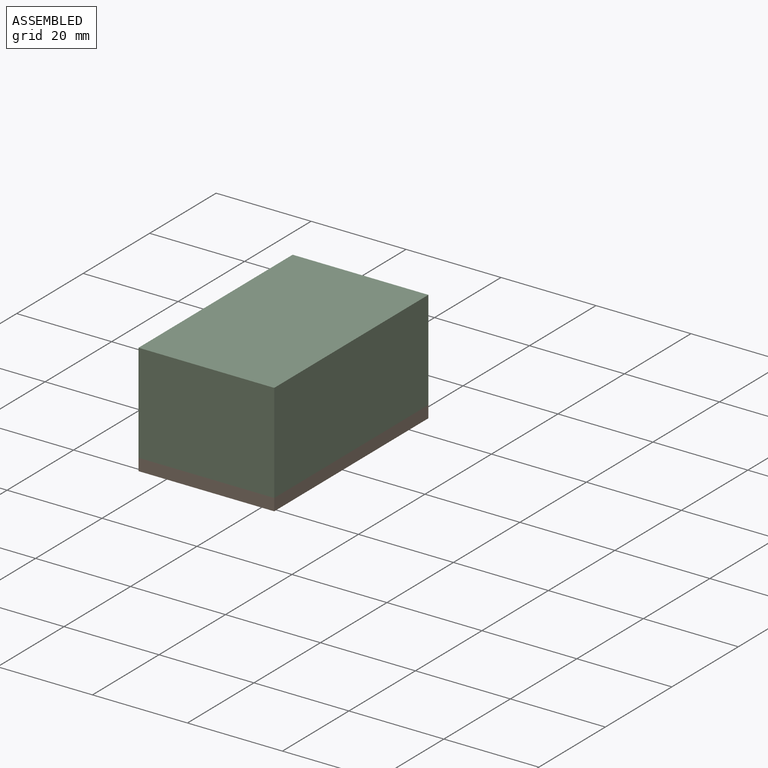
[diagram: assembled view]
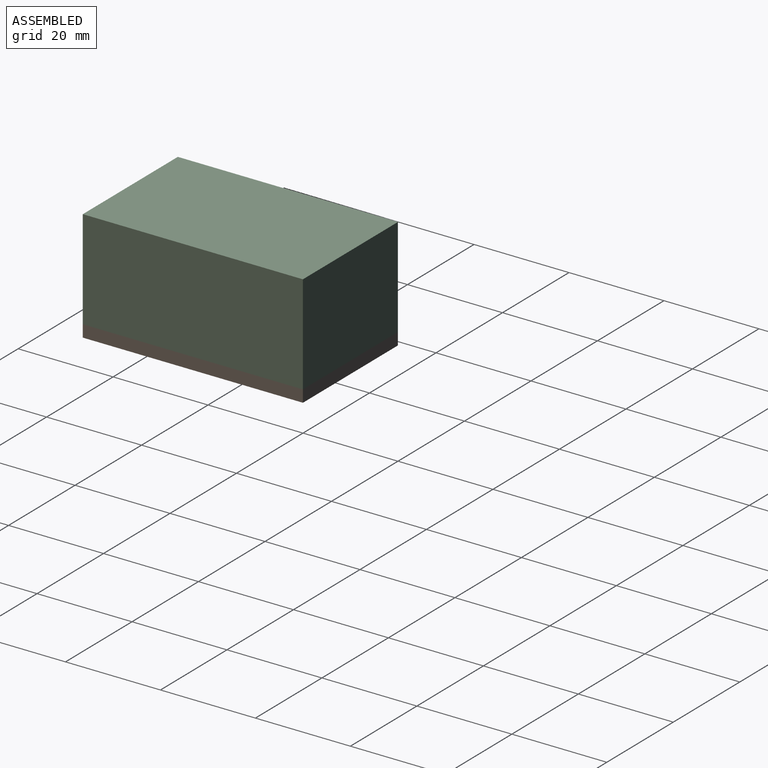
[diagram: assembled view, second angle]
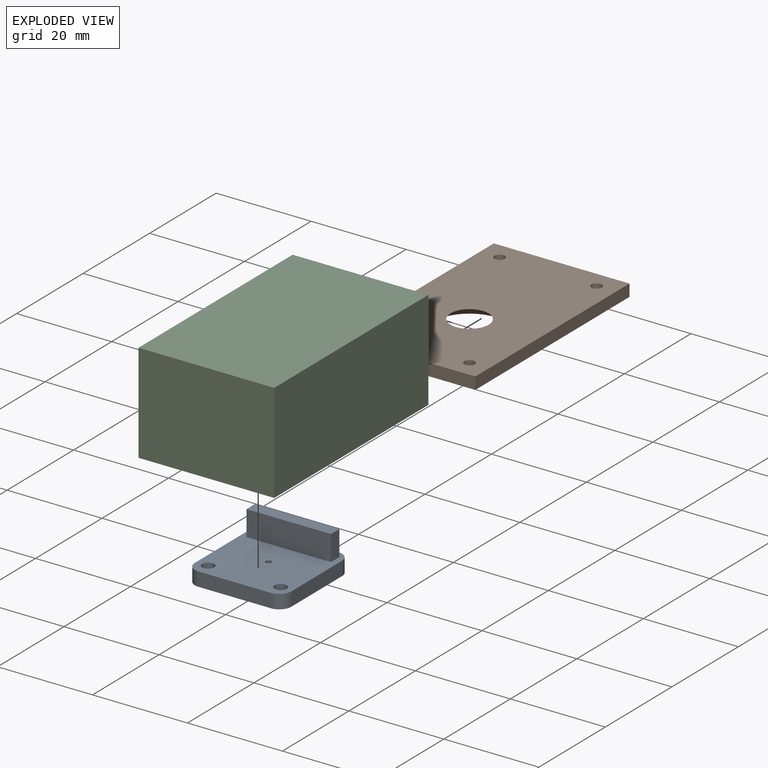
[diagram: exploded view]
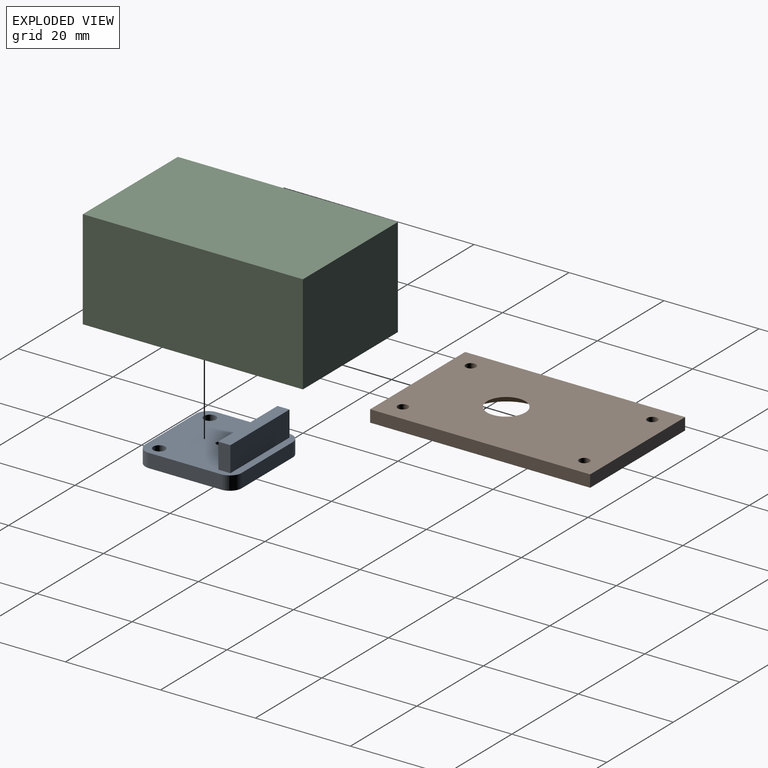
[diagram: exploded view, second angle]
ASSEMBLY  parts=3 mates=4
PART A: 18 faces, bbox 20.3x20.3x8.3 mm
  f0: plane 20.32x20.32mm, normal (0,0,1), area 350.8mm2, adj f1,f2,f3,f4,f6,f7,f8,f9
  f1: plane 15.24x2.92mm, normal (-1,0,0), area 44.5mm2, adj f0,f5,f8,f11
  f2: plane 15.24x2.92mm, normal (0,-1,0), area 44.5mm2, adj f0,f5,f8,f9
  f3: plane 15.24x2.92mm, normal (1,0,0), area 44.5mm2, adj f0,f5,f9,f10
  f4: plane 15.24x2.92mm, normal (0,1,0), area 44.5mm2, adj f0,f5,f10,f11
  f5: plane 20.32x20.32mm, normal (0,0,-1), area 396mm2, adj f1,f2,f3,f4,f6,f7,f8,f9
  f6: cylinder r=1.27mm len=2.92mm, axis (0,0,1), area 23.3mm2, adj f0,f5
  f7: cylinder r=1.27mm len=2.92mm, axis (0,0,1), area 23.3mm2, adj f0,f5
  f8: cylinder r=2.54mm len=2.92mm, axis (0,0,-1), area 11.7mm2, adj f0,f1,f2,f5
  f9: cylinder r=2.54mm len=2.92mm, axis (0,0,1), area 11.7mm2, adj f0,f2,f3,f5
  f10: cylinder r=2.54mm len=2.92mm, axis (0,0,-1), area 11.7mm2, adj f0,f3,f4,f5
  f11: cylinder r=2.54mm len=2.92mm, axis (0,0,1), area 11.7mm2, adj f0,f1,f4,f5
  f12: plane 17.78x5.33mm, normal (0,1,0), area 94.8mm2, adj f0,f13,f15,f16
  f13: plane 5.33x2.54mm, normal (-1,0,0), area 13.5mm2, adj f0,f12,f14,f16
  f14: plane 17.78x5.33mm, normal (0,-1,0), area 94.8mm2, adj f0,f13,f15,f16
  f15: plane 5.33x2.54mm, normal (1,0,0), area 13.5mm2, adj f0,f12,f14,f16
  f16: plane 17.78x2.54mm, normal (0,0,1), area 45.2mm2, adj f12,f13,f14,f15
  f17: cylinder r=0.64mm len=2.92mm, axis (0,0,1), area 11.7mm2, adj f0,f5
PART B: 11 faces, bbox 46.4x28.6x2.5 mm
  f0: plane 28.58x2.54mm, normal (-1,0,0), area 72.6mm2, adj f1,f3,f4,f5
  f1: plane 46.36x2.54mm, normal (0,-1,0), area 117.7mm2, adj f0,f2,f4,f5
  f2: plane 28.58x2.54mm, normal (1,0,0), area 72.6mm2, adj f1,f3,f4,f5
  f3: plane 46.36x2.54mm, normal (0,1,0), area 117.7mm2, adj f0,f2,f4,f5
  f4: plane 46.36x28.58mm, normal (0,0,1), area 1258.6mm2, adj f0,f1,f2,f3,f6,f7,f8,f9
  f5: plane 46.36x28.58mm, normal (0,0,-1), area 1125.5mm2, adj f0,f1,f2,f3,f6,f7,f8,f9
  f6: cylinder r=1.09mm len=2.54mm, axis (0,0,1), area 17.4mm2, adj f4,f5
  f7: cylinder r=1.09mm len=2.54mm, axis (0,0,1), area 17.4mm2, adj f4,f5
  f8: cylinder r=1.09mm len=2.54mm, axis (0,0,1), area 17.4mm2, adj f4,f5
  f9: cylinder r=1.09mm len=2.54mm, axis (0,0,1), area 17.4mm2, adj f4,f5
  f10: cone r=0mm half-angle=55deg, axis (0,0,-1), area 162.5mm2, adj f4,f5
PART C: 39 faces, bbox 46.4x28.6x21 mm
  f0: plane 0.08x0.08mm, normal (0,0,1), area 0mm2, adj f2,f3,f37
  f1: plane 42.8x25.02mm, normal (0,0,1), area 925.1mm2, adj f6,f7,f9,f13,f23,f27,f32,f33
  f2: plane 19.18x0.08mm, normal (-1,0,0), area 1.6mm2, adj f0,f3,f20,f37
  f3: plane 19.18x0.08mm, normal (0,1,0), area 1.6mm2, adj f0,f2,f20,f37
  f4: plane 0.08x0.08mm, normal (0,0,1), area 0mm2, adj f5,f8,f35
  f5: plane 19.18x0.08mm, normal (0,-1,0), area 1.6mm2, adj f4,f8,f20,f35
  f6: plane 33.82x19.18mm, normal (0,-1,0), area 648.6mm2, adj f1,f20,f33,f36
  f7: plane 19.18x16.04mm, normal (-1,0,0), area 307.6mm2, adj f1,f20,f36,f38
  f8: plane 19.18x0.08mm, normal (-1,0,0), area 1.6mm2, adj f4,f5,f20,f35
  f9: plane 19.18x16.04mm, normal (1,0,0), area 307.6mm2, adj f1,f20,f32,f33
  f10: plane 0.08x0.08mm, normal (0,0,1), area 0mm2, adj f12,f22,f34
  f11: plane 19.18x0.08mm, normal (1,0,0), area 1.6mm2, adj f14,f15,f20,f31
  f12: plane 19.18x0.08mm, normal (1,0,0), area 1.6mm2, adj f10,f20,f22,f34
  f13: plane 33.82x19.18mm, normal (0,1,0), area 648.6mm2, adj f1,f20,f32,f38
  f14: plane 19.18x0.08mm, normal (0,1,0), area 1.6mm2, adj f11,f15,f20,f31
  f15: plane 0.08x0.08mm, normal (0,0,1), area 0mm2, adj f11,f14,f31
  f16: plane 28.58x20.96mm, normal (-1,0,0), area 598.8mm2, adj f17,f19,f20,f21
  f17: plane 46.36x20.96mm, normal (0,-1,0), area 971.4mm2, adj f16,f18,f20,f21
  f18: plane 28.58x20.96mm, normal (1,0,0), area 598.8mm2, adj f17,f19,f20,f21
  f19: plane 46.36x20.96mm, normal (0,1,0), area 971.4mm2, adj f16,f18,f20,f21
  f20: plane 46.36x28.58mm, normal (0,0,1), area 358.9mm2, adj f2,f3,f5,f6,f7,f8,f9,f11
  f21: plane 46.36x28.58mm, normal (0,0,-1), area 1324.6mm2, adj f16,f17,f18,f19
  f22: plane 19.18x0.08mm, normal (0,-1,0), area 1.6mm2, adj f10,f12,f20,f34
  f23: cylinder r=2.54mm len=14.99mm, axis (0,0,-1), area 239.2mm2, adj f1,f24
  f24: plane 5.08x5.08mm, normal (0,0,1), area 17.8mm2, adj f23,f25
  f25: cylinder r=0.89mm len=6.35mm, axis (0,0,1), area 35.5mm2, adj f24,f26
  f26: plane 1.78x1.78mm, normal (0,0,1), area 2.5mm2, adj f25
  f27: cylinder r=2.54mm len=14.99mm, axis (0,0,-1), area 239.2mm2, adj f1,f28
  f28: plane 5.08x5.08mm, normal (0,0,1), area 17.8mm2, adj f27,f29
  f29: cylinder r=0.89mm len=6.35mm, axis (0,0,1), area 35.5mm2, adj f28,f30
  f30: plane 1.78x1.78mm, normal (0,0,1), area 2.5mm2, adj f29
  f31: cylinder r=3.17mm len=19.18mm, axis (0,0,-1), area 2.2mm2, adj f11,f14,f15,f20
  f32: cylinder r=3.17mm len=19.18mm, axis (0,0,-1), area 193.5mm2, adj f1,f9,f13,f20
  f33: cylinder r=3.17mm len=19.18mm, axis (0,0,-1), area 193.5mm2, adj f1,f6,f9,f20
  f34: cylinder r=3.17mm len=19.18mm, axis (0,0,-1), area 2.2mm2, adj f10,f12,f20,f22
  f35: cylinder r=3.17mm len=19.18mm, axis (0,0,-1), area 2.2mm2, adj f4,f5,f8,f20
  f36: cylinder r=3.17mm len=19.18mm, axis (0,0,-1), area 193.5mm2, adj f1,f6,f7,f20
  f37: cylinder r=3.17mm len=19.18mm, axis (0,0,-1), area 2.2mm2, adj f0,f2,f3,f20
  f38: cylinder r=3.17mm len=19.18mm, axis (0,0,-1), area 193.5mm2, adj f1,f7,f13,f20
PLACE A rot(axis=(0,0,-1),180deg) t=(-1.59,-44.8,2.29)mm
PLACE B rot(axis=(0,0,1),90deg) t=(-1.59,-40.29,-1.52)mm
PLACE C rot(axis=(0.71,0.71,0),180deg) t=(-1.59,-40.29,21.97)mm
MATE planar A.f0 <-> C.f27  axis (0,0,1) through (-1.59,-45.54,5.21)mm
MATE planar B.f2 <-> C.f18  axis (0,1,0) through (-15.88,-17.12,-0.25)mm
MATE planar C.f17 <-> B.f3  axis (-1,0,0) through (-15.88,-40.29,11.49)mm
MATE slider C.f23 <-> A.f7  axis (0,0,-1) through (-9.21,-52.04,5.21)mm
